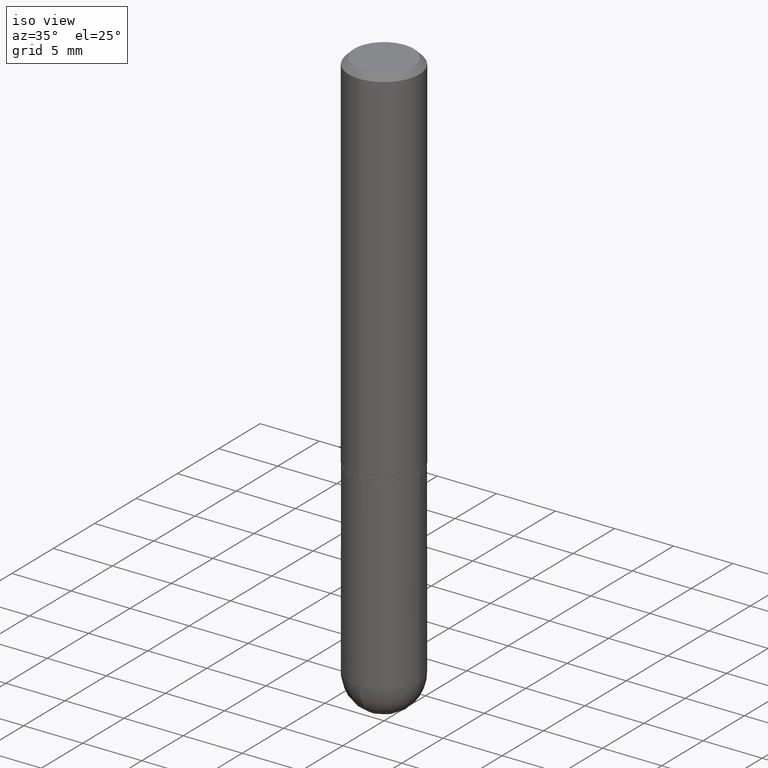
[diagram: clean part render]
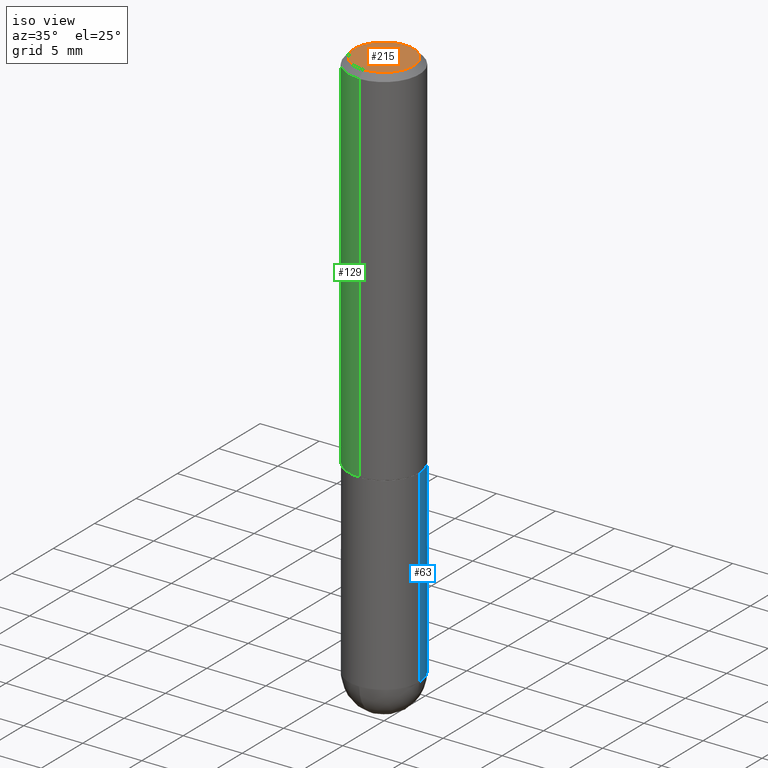
[diagram: same view with three faces highlighted in distinct colors, each labeled with its STEP entity id]
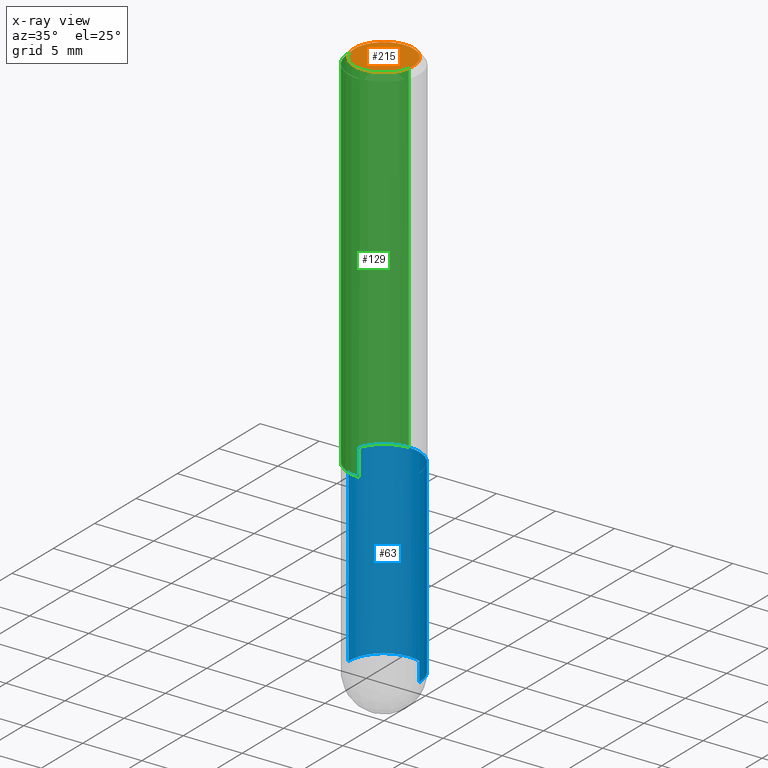
[diagram: x-ray of the same camera — body ghosted, the three highlighted faces saturated]
A machine part, iso view with three faces highlighted in distinct colors.
The next image is the same camera in x-ray (body ghosted, the three faces saturated) — at least one of them is partly hidden behind the body in this view.
Their STEP definitions:

[orange] entity #215 — the highlighted planar face has unit normal (0, -0, -1).
#15 = CARTESIAN_POINT ( 'NONE',  ( 2.197026823691284091E-45, -3.133845234576704690E-31, -8.979887161092311075E-17 ) ) ;
#36 = AXIS2_PLACEMENT_3D ( 'NONE', #15, #271, #177 ) ;
#58 = CARTESIAN_POINT ( 'NONE',  ( 6.850286386810235398E-16, 0.09810000000000010378, -3.872536458271600685E-16 ) ) ;
#77 = EDGE_CURVE ( 'NONE', #375, #108, #144, .T. ) ;
#108 = VERTEX_POINT ( 'NONE', #274 ) ;
#144 = CIRCLE ( 'NONE', #36, 0.09810000000000010378 ) ;
#150 = EDGE_LOOP ( 'NONE', ( #352, #364 ) ) ;
#172 = FACE_OUTER_BOUND ( 'NONE', #150, .T. ) ;
#177 = DIRECTION ( 'NONE',  ( -6.982962677686267499E-15, -1.000000000000000000, 3.489849235695190219E-15 ) ) ;
#190 = DIRECTION ( 'NONE',  ( -6.982962677686267499E-15, -1.000000000000000000, 3.489849235695190219E-15 ) ) ;
#212 = CARTESIAN_POINT ( 'NONE',  ( 2.197026823691284091E-45, -3.133845234576704690E-31, -8.979887161092311075E-17 ) ) ;
#215 = ADVANCED_FACE ( 'NONE', ( #172 ), #297, .F. ) ;
#220 = DIRECTION ( 'NONE',  ( 2.446608497721967208E-29, -3.489849235695189824E-15, -1.000000000000000000 ) ) ;
#225 = AXIS2_PLACEMENT_3D ( 'NONE', #58, #220, #313 ) ;
#271 = DIRECTION ( 'NONE',  ( -2.446608497721967489E-29, 3.489849235695189824E-15, 1.000000000000000000 ) ) ;
#274 = CARTESIAN_POINT ( 'NONE',  ( -7.416198335591027009E-16, -0.09810000000000010378, 2.525553384107754209E-16 ) ) ;
#276 = DIRECTION ( 'NONE',  ( -2.446608497721967489E-29, 3.489849235695189824E-15, 1.000000000000000000 ) ) ;
#297 = PLANE ( 'NONE',  #225 ) ;
#299 = CIRCLE ( 'NONE', #371, 0.09810000000000010378 ) ;
#302 = EDGE_CURVE ( 'NONE', #108, #375, #299, .T. ) ;
#313 = DIRECTION ( 'NONE',  ( 6.982962677686265922E-15, 1.000000000000000000, -3.489849235695189824E-15 ) ) ;
#320 = CARTESIAN_POINT ( 'NONE',  ( 7.548582654578859505E-16, 0.09810000000000010378, -4.321530816326215192E-16 ) ) ;
#352 = ORIENTED_EDGE ( 'NONE', *, *, #77, .T. ) ;
#364 = ORIENTED_EDGE ( 'NONE', *, *, #302, .T. ) ;
#371 = AXIS2_PLACEMENT_3D ( 'NONE', #212, #276, #190 ) ;
#375 = VERTEX_POINT ( 'NONE', #320 ) ;

[blue] entity #63 — the highlighted cylindrical surface (partial cylindrical patch) has radius 2.9997 mm, axis along (-0, 0, 1).
#7 = CYLINDRICAL_SURFACE ( 'NONE', #321, 0.1180999999999999966 ) ;
#10 = DIRECTION ( 'NONE',  ( -2.445468806185136877E-29, 3.491481338843145188E-15, 1.000000000000000000 ) ) ;
#46 = VERTEX_POINT ( 'NONE', #290 ) ;
#61 = EDGE_CURVE ( 'NONE', #46, #125, #67, .T. ) ;
#63 = ADVANCED_FACE ( 'NONE', ( #64 ), #7, .T. ) ;
#64 = FACE_OUTER_BOUND ( 'NONE', #263, .T. ) ;
#65 = VERTEX_POINT ( 'NONE', #130 ) ;
#67 = LINE ( 'NONE', #197, #114 ) ;
#74 = DIRECTION ( 'NONE',  ( 1.000000000000000000, -6.982962677686265133E-15, 0.000000000000000000 ) ) ;
#78 = CARTESIAN_POINT ( 'NONE',  ( 8.246878922347925374E-16, 0.1180999999999934463, -1.850400000000000489 ) ) ;
#85 = DIRECTION ( 'NONE',  ( -2.445468806185136597E-29, 3.491481338843145583E-15, 1.000000000000000000 ) ) ;
#88 = EDGE_CURVE ( 'NONE', #392, #243, #410, .T. ) ;
#93 = EDGE_CURVE ( 'NONE', #243, #65, #137, .T. ) ;
#98 = CIRCLE ( 'NONE', #246, 0.1180999999999999966 ) ;
#101 = DIRECTION ( 'NONE',  ( -2.445468806185136597E-29, 3.491481338843145583E-15, 1.000000000000000000 ) ) ;
#103 = VECTOR ( 'NONE', #110, 39.37007874015748143 ) ;
#107 = ORIENTED_EDGE ( 'NONE', *, *, #347, .F. ) ;
#110 = DIRECTION ( 'NONE',  ( -2.445468806185136877E-29, 3.491481338843145188E-15, 1.000000000000000000 ) ) ;
#114 = VECTOR ( 'NONE', #10, 39.37007874015748143 ) ;
#125 = VERTEX_POINT ( 'NONE', #334 ) ;
#127 = DIRECTION ( 'NONE',  ( 1.000000000000000000, -6.982962677686266711E-15, 4.876176775795936353E-29 ) ) ;
#130 = CARTESIAN_POINT ( 'NONE',  ( -0.1180999999999999966, -4.521844050794029710E-15, -1.220499999999999918 ) ) ;
#133 = ORIENTED_EDGE ( 'NONE', *, *, #61, .F. ) ;
#137 = LINE ( 'NONE', #147, #103 ) ;
#147 = CARTESIAN_POINT ( 'NONE',  ( -0.1180999999999999966, 8.391509709326782957E-16, -5.809262341591043784E-30 ) ) ;
#149 = DIRECTION ( 'NONE',  ( -2.445468806185136597E-29, 3.491481338843145583E-15, 1.000000000000000000 ) ) ;
#164 = CARTESIAN_POINT ( 'NONE',  ( 0.000000000000000000, 0.000000000000000000, 0.000000000000000000 ) ) ;
#170 = ORIENTED_EDGE ( 'NONE', *, *, #88, .T. ) ;
#182 = CARTESIAN_POINT ( 'NONE',  ( 4.525095478964976833E-29, -6.460637069395356787E-15, -1.850400000000000045 ) ) ;
#186 = DIRECTION ( 'NONE',  ( 1.000000000000000000, -6.982962677686265133E-15, 0.000000000000000000 ) ) ;
#187 = AXIS2_PLACEMENT_3D ( 'NONE', #182, #85, #186 ) ;
#189 = ORIENTED_EDGE ( 'NONE', *, *, #236, .T. ) ;
#195 = DIRECTION ( 'NONE',  ( -2.445468806185136597E-29, 3.491481338843145583E-15, 1.000000000000000000 ) ) ;
#197 = CARTESIAN_POINT ( 'NONE',  ( 0.1180999999999999966, -8.246878922347480654E-16, 5.758764772215000440E-30 ) ) ;
#229 = DIRECTION ( 'NONE',  ( 1.000000000000000000, -6.982962677686265133E-15, 0.000000000000000000 ) ) ;
#230 = AXIS2_PLACEMENT_3D ( 'NONE', #311, #149, #74 ) ;
#234 = ORIENTED_EDGE ( 'NONE', *, *, #93, .T. ) ;
#236 = EDGE_CURVE ( 'NONE', #46, #392, #397, .T. ) ;
#243 = VERTEX_POINT ( 'NONE', #310 ) ;
#246 = AXIS2_PLACEMENT_3D ( 'NONE', #383, #101, #229 ) ;
#263 = EDGE_LOOP ( 'NONE', ( #170, #234, #107, #133, #189 ) ) ;
#290 = CARTESIAN_POINT ( 'NONE',  ( 0.1180999999999999966, -6.185682913961456170E-15, -1.850400000000000045 ) ) ;
#310 = CARTESIAN_POINT ( 'NONE',  ( -0.1180999999999999966, -4.521844050794030499E-15, -1.850400000000000045 ) ) ;
#311 = CARTESIAN_POINT ( 'NONE',  ( 4.525095478964976833E-29, -6.460637069395356787E-15, -1.850400000000000045 ) ) ;
#321 = AXIS2_PLACEMENT_3D ( 'NONE', #164, #195, #127 ) ;
#334 = CARTESIAN_POINT ( 'NONE',  ( 0.1180999999999999966, -5.086040866292807290E-15, -1.220499999999999918 ) ) ;
#347 = EDGE_CURVE ( 'NONE', #125, #65, #98, .T. ) ;
#383 = CARTESIAN_POINT ( 'NONE',  ( 2.984694677948959472E-29, -4.261352974058059028E-15, -1.220499999999999918 ) ) ;
#392 = VERTEX_POINT ( 'NONE', #78 ) ;
#397 = CIRCLE ( 'NONE', #187, 0.1180999999999999966 ) ;
#410 = CIRCLE ( 'NONE', #230, 0.1180999999999999966 ) ;

[green] entity #129 — the highlighted cylindrical surface (partial cylindrical patch) has radius 2.9997 mm, axis along (-0, 0, 1).
#16 = DIRECTION ( 'NONE',  ( -6.982962677686265922E-15, -1.000000000000000000, 3.505890868245046092E-15 ) ) ;
#31 = ORIENTED_EDGE ( 'NONE', *, *, #374, .T. ) ;
#54 = DIRECTION ( 'NONE',  ( -2.446608497721967489E-29, 3.489849235695189824E-15, 1.000000000000000000 ) ) ;
#62 = VECTOR ( 'NONE', #328, 39.37007874015748143 ) ;
#66 = DIRECTION ( 'NONE',  ( -2.446608497721967489E-29, 3.489849235695189824E-15, 1.000000000000000000 ) ) ;
#73 = CARTESIAN_POINT ( 'NONE',  ( 8.391509709326787887E-16, 0.1181000000000000799, -4.121511947356022073E-16 ) ) ;
#89 = CARTESIAN_POINT ( 'NONE',  ( 4.893216995443941564E-31, -6.979698471390387290E-17, -0.02000000000000002470 ) ) ;
#112 = CARTESIAN_POINT ( 'NONE',  ( -8.246878922347485584E-16, -0.1181000000000000799, 4.121511947356022073E-16 ) ) ;
#116 = CARTESIAN_POINT ( 'NONE',  ( 0.000000000000000000, 0.000000000000000000, 0.000000000000000000 ) ) ;
#124 = CARTESIAN_POINT ( 'NONE',  ( -8.246878922347193706E-16, -0.1181000000000044237, -1.219499999999999584 ) ) ;
#128 = CARTESIAN_POINT ( 'NONE',  ( 8.246878922347484598E-16, 0.1180999999999999273, -0.02000000000000044104 ) ) ;
#129 = ADVANCED_FACE ( 'NONE', ( #142 ), #396, .T. ) ;
#142 = FACE_OUTER_BOUND ( 'NONE', #154, .T. ) ;
#143 = DIRECTION ( 'NONE',  ( -2.446608497721967489E-29, 3.489849235695189824E-15, 1.000000000000000000 ) ) ;
#154 = EDGE_LOOP ( 'NONE', ( #319, #31, #216, #309 ) ) ;
#175 = AXIS2_PLACEMENT_3D ( 'NONE', #351, #66, #385 ) ;
#183 = EDGE_CURVE ( 'NONE', #198, #369, #267, .T. ) ;
#188 = CARTESIAN_POINT ( 'NONE',  ( -8.102248135368172434E-16, -0.1181000000000000660, -0.01999999999999961184 ) ) ;
#198 = VERTEX_POINT ( 'NONE', #202 ) ;
#202 = CARTESIAN_POINT ( 'NONE',  ( 8.391509709326943687E-16, 0.1180999999999959166, -1.219500000000000473 ) ) ;
#216 = ORIENTED_EDGE ( 'NONE', *, *, #265, .T. ) ;
#231 = AXIS2_PLACEMENT_3D ( 'NONE', #89, #332, #16 ) ;
#235 = VECTOR ( 'NONE', #143, 39.37007874015748143 ) ;
#239 = DIRECTION ( 'NONE',  ( -6.982962677686265922E-15, -1.000000000000000000, 3.489849235695189824E-15 ) ) ;
#240 = VERTEX_POINT ( 'NONE', #188 ) ;
#247 = VERTEX_POINT ( 'NONE', #124 ) ;
#250 = EDGE_CURVE ( 'NONE', #369, #240, #348, .T. ) ;
#265 = EDGE_CURVE ( 'NONE', #247, #240, #395, .T. ) ;
#267 = LINE ( 'NONE', #73, #62 ) ;
#286 = CIRCLE ( 'NONE', #175, 0.1181000000000001632 ) ;
#309 = ORIENTED_EDGE ( 'NONE', *, *, #250, .F. ) ;
#319 = ORIENTED_EDGE ( 'NONE', *, *, #183, .F. ) ;
#328 = DIRECTION ( 'NONE',  ( -2.446608497721967489E-29, 3.489849235695189824E-15, 1.000000000000000000 ) ) ;
#332 = DIRECTION ( 'NONE',  ( -2.446608497721967489E-29, 3.489849235695189824E-15, 1.000000000000000000 ) ) ;
#348 = CIRCLE ( 'NONE', #231, 0.1180999999999999966 ) ;
#351 = CARTESIAN_POINT ( 'NONE',  ( 2.983639062971939507E-29, -4.255871142930284635E-15, -1.219500000000000028 ) ) ;
#369 = VERTEX_POINT ( 'NONE', #128 ) ;
#370 = AXIS2_PLACEMENT_3D ( 'NONE', #116, #54, #239 ) ;
#374 = EDGE_CURVE ( 'NONE', #198, #247, #286, .T. ) ;
#385 = DIRECTION ( 'NONE',  ( -6.982962677686265922E-15, -1.000000000000000000, 3.469747663417772269E-15 ) ) ;
#395 = LINE ( 'NONE', #112, #235 ) ;
#396 = CYLINDRICAL_SURFACE ( 'NONE', #370, 0.1181000000000000799 ) ;